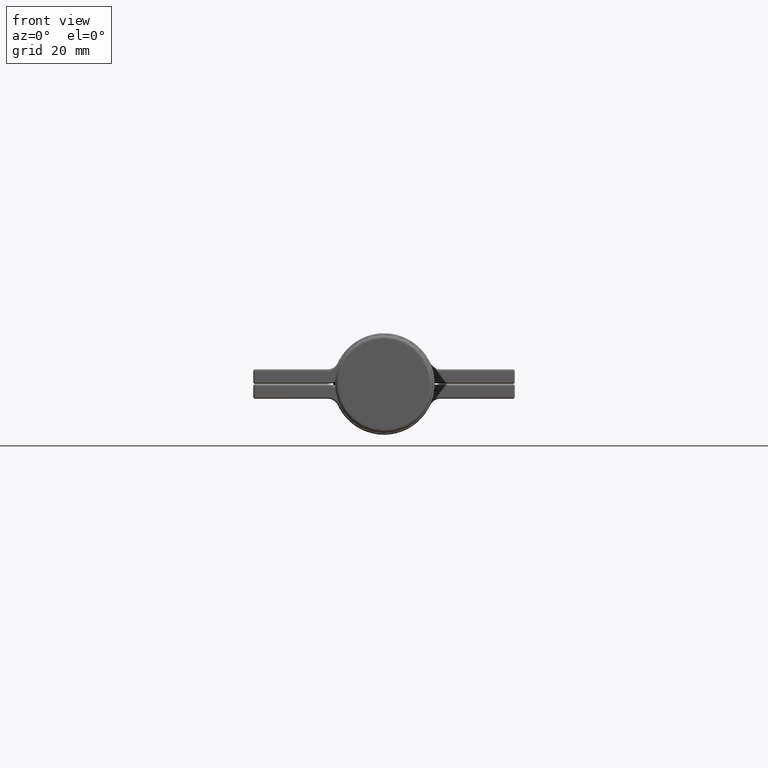
[diagram: clean part render]
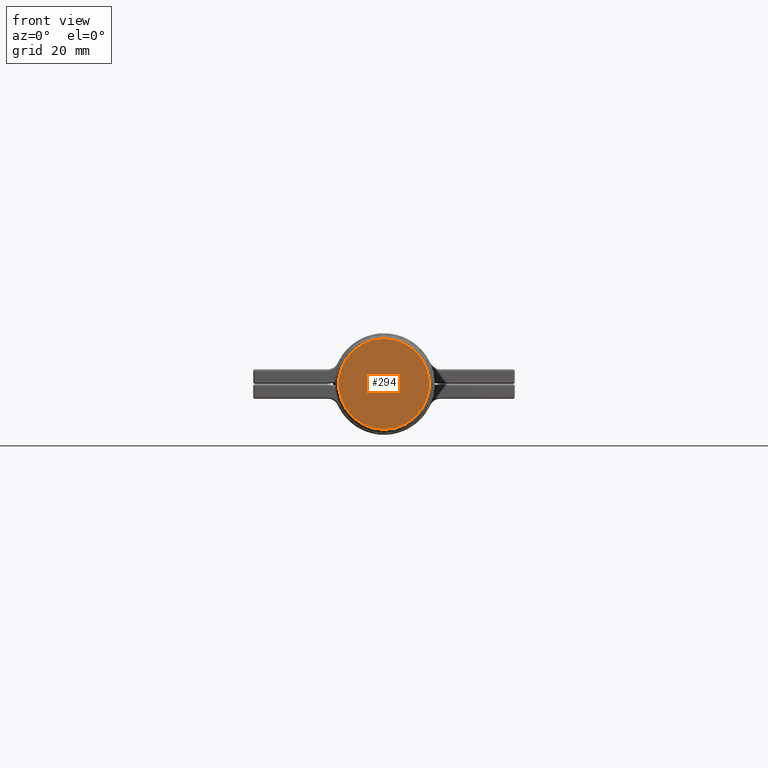
[diagram: same view with one face highlighted and labeled with its STEP entity id]
A machine part, front view. The second image highlights one B-rep face of the part: STEP entity #294.
In plain terms, the highlighted planar face has unit normal (0, -1, 0).
Its self-contained STEP definition (entity closure, byte-faithful):
#294 = ADVANCED_FACE ( 'NONE', ( #7395 ), #10235, .T. ) ;
#332 = CARTESIAN_POINT ( 'NONE',  ( 0.000000000000000000, -4.336808689942017736E-16, 0.000000000000000000 ) ) ;
#1193 = DIRECTION ( 'NONE',  ( 0.000000000000000000, -1.000000000000000000, -0.000000000000000000 ) ) ;
#1599 = AXIS2_PLACEMENT_3D ( 'NONE', #332, #6165, #7914 ) ;
#3520 = CIRCLE ( 'NONE', #1599, 12.50000000000000000 ) ;
#3687 = ORIENTED_EDGE ( 'NONE', *, *, #6648, .T. ) ;
#3804 = VERTEX_POINT ( 'NONE', #7354 ) ;
#5246 = DIRECTION ( 'NONE',  ( 0.000000000000000000, 0.000000000000000000, -1.000000000000000000 ) ) ;
#5281 = EDGE_LOOP ( 'NONE', ( #3687 ) ) ;
#6165 = DIRECTION ( 'NONE',  ( -0.000000000000000000, -1.000000000000000000, -0.000000000000000000 ) ) ;
#6175 = AXIS2_PLACEMENT_3D ( 'NONE', #9411, #1193, #5246 ) ;
#6648 = EDGE_CURVE ( 'NONE', #3804, #3804, #3520, .T. ) ;
#7354 = CARTESIAN_POINT ( 'NONE',  ( 0.000000000000000000, -4.336808689942017736E-16, -12.50000000000000000 ) ) ;
#7395 = FACE_OUTER_BOUND ( 'NONE', #5281, .T. ) ;
#7914 = DIRECTION ( 'NONE',  ( 0.000000000000000000, 0.000000000000000000, -1.000000000000000000 ) ) ;
#9411 = CARTESIAN_POINT ( 'NONE',  ( 13.50000000000000000, -3.348435766752475315E-16, 0.000000000000000000 ) ) ;
#10235 = PLANE ( 'NONE',  #6175 ) ;